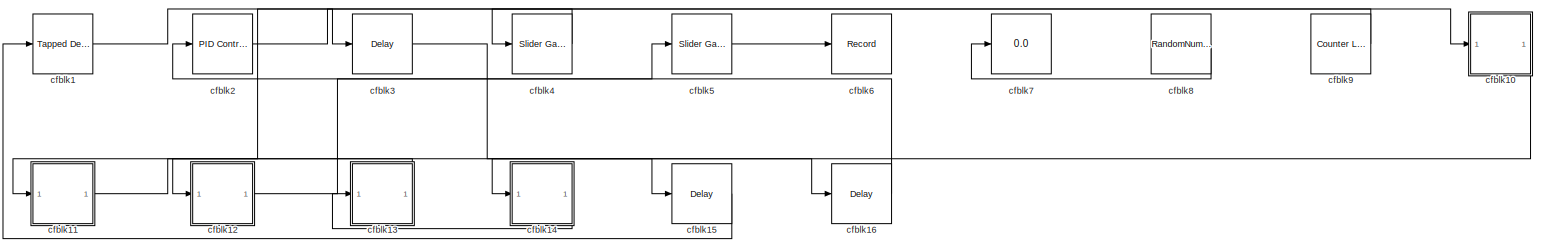
[diagram: root canvas - part 1/1, most of the canvas]
MODEL slx_7b19e94bd1d8
KIND model
CONFIG AbsTol = auto
CONFIG EnableMultiTasking = off
CONFIG FixedStep = auto
CONFIG MaxStep = auto
CONFIG MinStep = auto
CONFIG RelTol = 1e-3
CONFIG SampleTimeConstraint = Unconstrained
CONFIG SolverName = VariableStepAuto
CONFIG StartTime = 0.0
CONFIG StopTime = 10.0
BLOCK [Reference] cfblk1  REF=simulink/Discrete/Tapped Delay
  Ports = [1, 1]
  SourceBlock = simulink/Discrete/Tapped Delay
  SourceProductBaseCode = SL
  SourceType = Tapped Delay Line
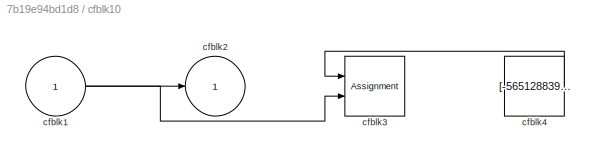
BLOCK [SubSystem] cfblk10
  Ports = [1, 1]
  RequestExecContextInheritance = off
BLOCK [Inport] cfblk10/cfblk1
BLOCK [Outport] cfblk10/cfblk2
BLOCK [Assignment] cfblk10/cfblk3
  DiagnosticForDimensions = Warning
  IndexOptions = Index vector (dialog)
  Indices = 1
  OutputSizes = 1
  Ports = [2, 1]
BLOCK [Constant] cfblk10/cfblk4
  SampleTime = 1
  Value = [-565128839.667500]
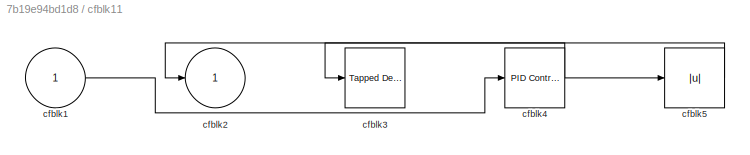
BLOCK [SubSystem] cfblk11
  Ports = [1, 1]
  RequestExecContextInheritance = off
BLOCK [Inport] cfblk11/cfblk1
BLOCK [Outport] cfblk11/cfblk2
BLOCK [Reference] cfblk11/cfblk3  REF=simulink/Discrete/Tapped Delay
  Ports = [1, 1]
  SourceBlock = simulink/Discrete/Tapped Delay
  SourceProductBaseCode = SL
  SourceType = Tapped Delay Line
BLOCK [Reference] cfblk11/cfblk4  REF=slpidlib/PID Controller
  Ports = [1, 1]
  SourceBlock = slpidlib/PID Controller
  SourceProductBaseCode = SL
  SourceType = PID 1dof
BLOCK [Abs] cfblk11/cfblk5
  SaturateOnIntegerOverflow = off
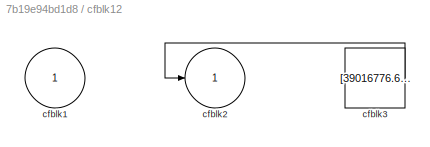
BLOCK [SubSystem] cfblk12
  Ports = [1, 1]
  RequestExecContextInheritance = off
BLOCK [Inport] cfblk12/cfblk1
BLOCK [Outport] cfblk12/cfblk2
BLOCK [Constant] cfblk12/cfblk3
  SampleTime = 1
  Value = [39016776.604132]
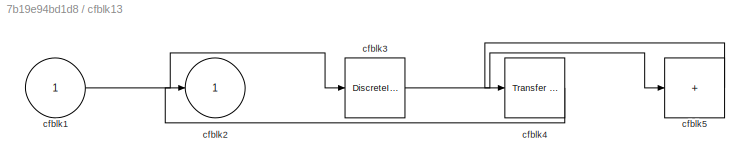
BLOCK [SubSystem] cfblk13
  Ports = [1, 1]
  RequestExecContextInheritance = off
BLOCK [Inport] cfblk13/cfblk1
BLOCK [Outport] cfblk13/cfblk2
BLOCK [DiscreteIntegrator] cfblk13/cfblk3
  ICPrevOutput = DiscIntNeverNeededParam
  ICPrevScaledInput = DiscIntNeverNeededParam
  InitialConditionSetting = Auto
  Ports = [1, 1]
BLOCK [Reference] cfblk13/cfblk4  REF=simulink/Discrete/Transfer Fcn
Real Zero
  Ports = [1, 1]
  SourceBlock = simulink/Discrete/Transfer Fcn\nReal Zero
  SourceProductBaseCode = SL
  SourceType = Transfer Fcn Real Zero
BLOCK [Sum] cfblk13/cfblk5
  IconShape = rectangular
  Inputs = +
  Ports = [1, 1]
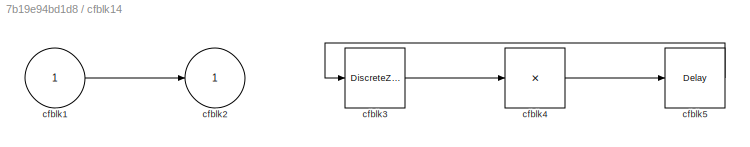
BLOCK [SubSystem] cfblk14
  Ports = [1, 1]
  RequestExecContextInheritance = off
BLOCK [Inport] cfblk14/cfblk1
BLOCK [Outport] cfblk14/cfblk2
BLOCK [DiscreteZeroPole] cfblk14/cfblk3
  Gain = 1
  Poles = [0 0.5]
BLOCK [Product] cfblk14/cfblk4
  Inputs = *
  Ports = [1, 1]
BLOCK [Delay] cfblk14/cfblk5
  InputPortMap = u0
  Ports = [1, 1]
  SampleTime = 1
BLOCK [Delay] cfblk15
  InputPortMap = u0
  Ports = [1, 1]
  SampleTime = 1
BLOCK [Delay] cfblk16
  InputPortMap = u0
  Ports = [1, 1]
  SampleTime = 1
BLOCK [Reference] cfblk2  REF=slpidlib/PID Controller
  Ports = [1, 1]
  SourceBlock = slpidlib/PID Controller
  SourceProductBaseCode = SL
  SourceType = PID 1dof
BLOCK [Delay] cfblk3
  InputPortMap = u0
  Ports = [1, 1]
  SampleTime = 1
BLOCK [Reference] cfblk4  REF=simulink/Math
Operations/Slider
Gain
  Ports = [1, 1]
  SourceBlock = simulink/Math\nOperations/Slider\nGain
  SourceProductBaseCode = SL
  SourceType = Slider Gain
BLOCK [Reference] cfblk5  REF=simulink/Math
Operations/Slider
Gain
  Ports = [1, 1]
  SourceBlock = simulink/Math\nOperations/Slider\nGain
  SourceProductBaseCode = SL
  SourceType = Slider Gain
BLOCK [Record] cfblk6
  FileSettingsInternal = {"entries":[{"content":{"excelSettings":{"content":{},"type":"Streamout.ExcelSettings"}},"type":"Streamout.FileSettingStorage","uuid":"1064970e-560a-426c-abcf-e61c50da6158"}],"packageUris":["http://schema.mathworks.com/mf0/streamout_blocks/R2020a"],"version":"1.0"}
  Ports = [1]
  SignalsInternal = {"entries":[{"content":{"signals":[{"content":{"blockPath":["sampleModel253/cfblk6"],"channel":[],"dimensions":[1],"domain":"sampleModel253/cfblk6","lineColor":"#a2142f","plots":[1],"port":1,"sid":[""],"signalID":10350,"signalName":"cfblk5"},"type":"RecordBlkView.Signal","uuid":"3cdbff0c-c21b-430f-99df-bf3807f5a006"}]},"type":"RecordBlkView.InputSignals","uuid":"78d69a3a-3485-4027-a201-9d4ffd16b84...<+95ch>
  VisualizationBindings = {"sparklinesplugin":{"info":[{"bindingParametersList":[],"subplotID":1}]}}
BLOCK [Display] cfblk7
  Decimation = 1
  Ports = [1]
BLOCK [RandomNumber] cfblk8
  Mean = [-18137.183301]
  SampleTime = 0.1
  Seed = [770285295.000000]
  Variance = [76139.008319]
BLOCK [Reference] cfblk9  REF=simulink/Sources/Counter
Limited
  Ports = [0, 1]
  SourceBlock = simulink/Sources/Counter\nLimited
  SourceProductBaseCode = SL
  SourceType = Counter Limited
NET cfblk10/cfblk1:1 -> cfblk10/cfblk2:1, cfblk10/cfblk3:2
LINE cfblk10/cfblk4:1 -> cfblk10/cfblk3:1
LINE cfblk10:1 -> cfblk14:1
LINE cfblk11/cfblk1:1 -> cfblk11/cfblk4:1
NET cfblk11/cfblk4:1 -> cfblk11/cfblk3:1, cfblk11/cfblk5:1
LINE cfblk11/cfblk5:1 -> cfblk11/cfblk2:1
LINE cfblk11:1 -> cfblk16:1
LINE cfblk12/cfblk3:1 -> cfblk12/cfblk2:1
LINE cfblk12:1 -> cfblk5:1
LINE cfblk13/cfblk1:1 -> cfblk13/cfblk3:1
LINE cfblk13/cfblk3:1 -> cfblk13/cfblk5:1
LINE cfblk13/cfblk4:1 -> cfblk13/cfblk2:1
LINE cfblk13/cfblk5:1 -> cfblk13/cfblk4:1
LINE cfblk13:1 -> cfblk11:1
LINE cfblk14/cfblk1:1 -> cfblk14/cfblk2:1
LINE cfblk14/cfblk3:1 -> cfblk14/cfblk4:1
LINE cfblk14/cfblk4:1 -> cfblk14/cfblk5:1
LINE cfblk14/cfblk5:1 -> cfblk14/cfblk3:1
LINE cfblk14:1 -> cfblk13:1
LINE cfblk15:1 -> cfblk1:1
LINE cfblk16:1 -> cfblk2:1
LINE cfblk1:1 -> cfblk3:1
LINE cfblk2:1 -> cfblk10:1
LINE cfblk3:1 -> cfblk15:1
LINE cfblk4:1 -> cfblk12:1
LINE cfblk5:1 -> cfblk6:1
LINE cfblk8:1 -> cfblk7:1
LINE cfblk9:1 -> cfblk4:1
note: NET lines group one-source signal fan-out (src -> all destinations, sorted); 1:1 wires keep LINE
